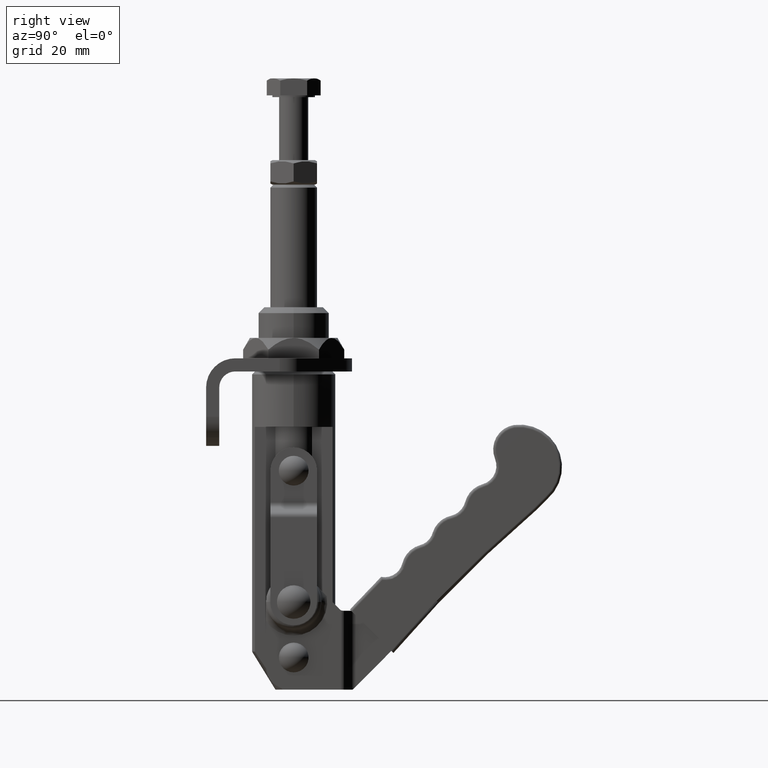
[diagram: clean part render]
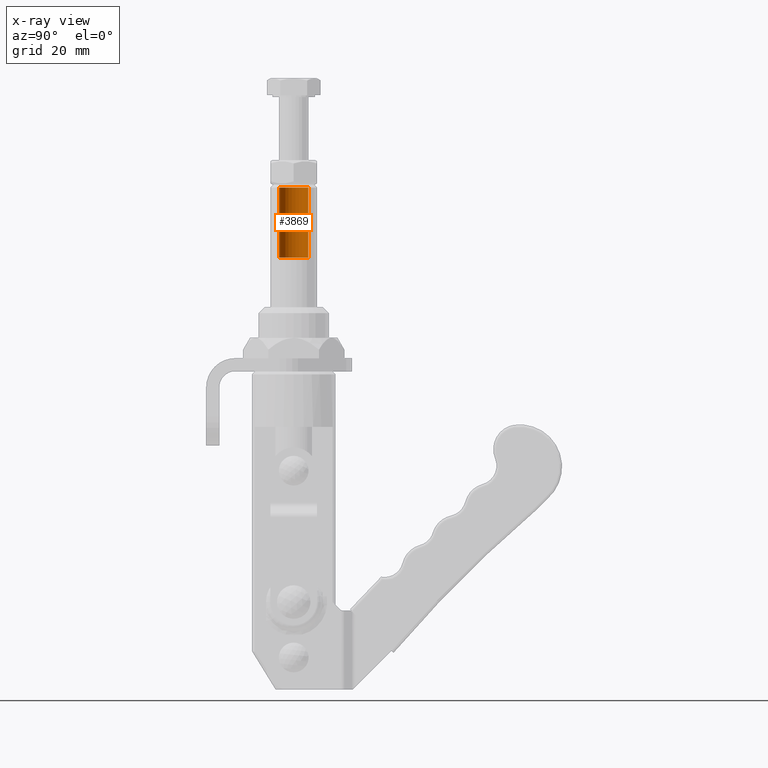
[diagram: x-ray — body ghosted, one internal face saturated and labeled with its STEP entity id]
A machine part, right view, then the same camera in x-ray: the body is ghosted and one INTERNAL B-rep face — a face not visible from any outside direction — is saturated and labeled: STEP entity #3869.
In plain terms, the highlighted face is a freeform B-spline surface patch.
Its self-contained STEP definition (entity closure, byte-faithful):
#3426=CARTESIAN_POINT('',(5.0,6.123032E-016,25.0));
#3427=VERTEX_POINT('',#3426);
#3436=CARTESIAN_POINT('',(-5.0,0.0,25.0));
#3437=VERTEX_POINT('',#3436);
#3444=CARTESIAN_POINT('',(0.0,0.0,25.0));
#3445=DIRECTION('',(0.0,0.0,-1.0));
#3446=DIRECTION('',(-1.0,0.0,0.0));
#3447=AXIS2_PLACEMENT_3D('',#3444,#3445,#3446);
#3448=CIRCLE('',#3447,5.0);
#3449=EDGE_CURVE('',#3437,#3427,#3448,.T.);
#3728=CARTESIAN_POINT('',(-5.0,-6.123032E-016,1.000000000000001));
#3729=VERTEX_POINT('',#3728);
#3730=CARTESIAN_POINT('',(-5.0,0.0,25.0));
#3731=DIRECTION('',(0.0,0.0,-1.0));
#3732=VECTOR('',#3731,24.0);
#3733=LINE('',#3730,#3732);
#3734=EDGE_CURVE('',#3437,#3729,#3733,.T.);
#3743=CARTESIAN_POINT('',(5.0,6.123032E-016,1.000000000000001));
#3744=VERTEX_POINT('',#3743);
#3745=CARTESIAN_POINT('',(5.0,6.123032E-016,1.000000000000001));
#3746=DIRECTION('',(0.0,0.0,1.0));
#3747=VECTOR('',#3746,24.0);
#3748=LINE('',#3745,#3747);
#3749=EDGE_CURVE('',#3744,#3427,#3748,.T.);
#3774=CARTESIAN_POINT('',(0.0,0.0,1.000000000000001));
#3775=DIRECTION('',(0.0,0.0,1.0));
#3776=DIRECTION('',(1.0,0.0,0.0));
#3777=AXIS2_PLACEMENT_3D('',#3774,#3775,#3776);
#3778=CIRCLE('',#3777,5.0);
#3779=EDGE_CURVE('',#3744,#3729,#3778,.T.);
#3837=CARTESIAN_POINT('',(5.0,-6.123032E-016,1.0));
#3838=CARTESIAN_POINT('',(5.0,-6.123032E-016,25.0));
#3839=CARTESIAN_POINT('',(4.999999999999998,-5.0,1.0));
#3840=CARTESIAN_POINT('',(4.999999999999998,-5.0,25.0));
#3841=CARTESIAN_POINT('',(-6.123032E-016,-5.0,1.0));
#3842=CARTESIAN_POINT('',(-6.123032E-016,-5.0,25.0));
#3843=CARTESIAN_POINT('',(-5.0,-4.999999999999998,1.0));
#3844=CARTESIAN_POINT('',(-5.0,-4.999999999999998,25.0));
#3845=CARTESIAN_POINT('',(-5.0,6.123032E-016,1.0));
#3846=CARTESIAN_POINT('',(-5.0,6.123032E-016,25.0));
#3847=CARTESIAN_POINT('',(-4.999999999999998,5.0,1.0));
#3848=CARTESIAN_POINT('',(-4.999999999999998,5.0,25.0));
#3849=CARTESIAN_POINT('',(6.123032E-016,5.0,1.0));
#3850=CARTESIAN_POINT('',(6.123032E-016,5.0,25.0));
#3851=CARTESIAN_POINT('',(5.0,4.999999999999998,1.0));
#3852=CARTESIAN_POINT('',(5.0,4.999999999999998,25.0));
#3853=CARTESIAN_POINT('',(5.0,-6.123032E-016,1.0));
#3854=CARTESIAN_POINT('',(5.0,-6.123032E-016,25.0));
#3862=(BOUNDED_SURFACE()B_SPLINE_SURFACE(1,2,((#3837,#3839,#3841,#3843,#3845,#3847,#3849,#3851,#3853),(#3838,#3840,#3842,#3844,#3846,#3848,#3850,#3852,#3854)),.UNSPECIFIED.,.F.,.T.,.U.)B_SPLINE_SURFACE_WITH_KNOTS((2,2),(3,2,2,2,3),(-2.300000000000000,2.500000000000000),(0.0,7.853981633974483,15.707963267948966,23.561944901923447,31.415926535897931),.UNSPECIFIED.)GEOMETRIC_REPRESENTATION_ITEM()RATIONAL_B_SPLINE_SURFACE(((1.0,0.707106781186548,1.0,0.707106781186548,1.0,0.707106781186548,1.0,0.707106781186548,1.0),(1.0,0.707106781186548,1.0,0.707106781186548,1.0,0.707106781186548,1.0,0.707106781186548,1.0)))REPRESENTATION_ITEM('')SURFACE());
#3863=ORIENTED_EDGE('',*,*,#3734,.T.);
#3864=ORIENTED_EDGE('',*,*,#3779,.F.);
#3865=ORIENTED_EDGE('',*,*,#3749,.T.);
#3866=ORIENTED_EDGE('',*,*,#3449,.F.);
#3867=EDGE_LOOP('',(#3863,#3864,#3865,#3866));
#3868=FACE_OUTER_BOUND('',#3867,.T.);
#3869=ADVANCED_FACE('',(#3868),#3862,.F.);